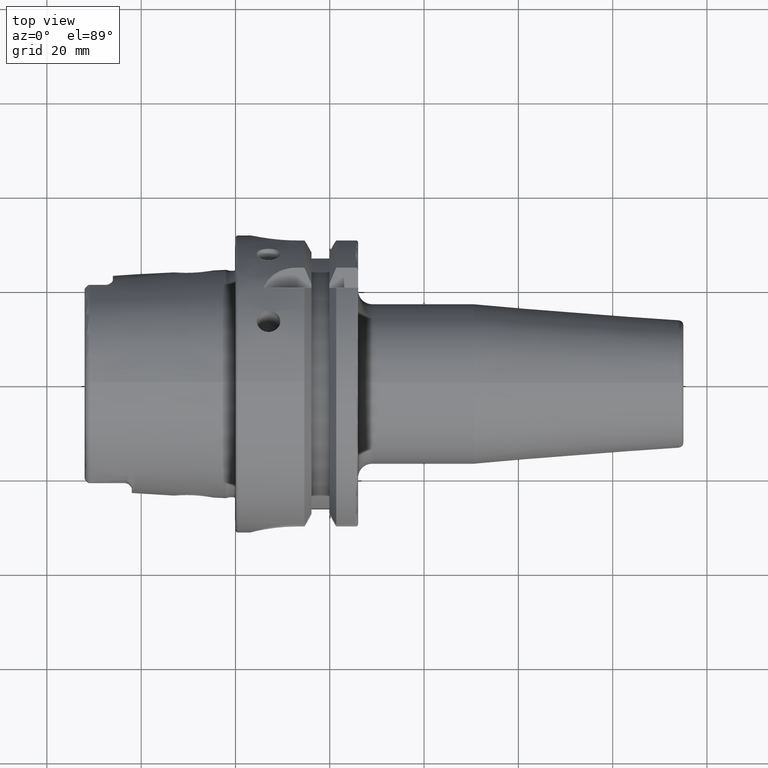
[diagram: clean part render]
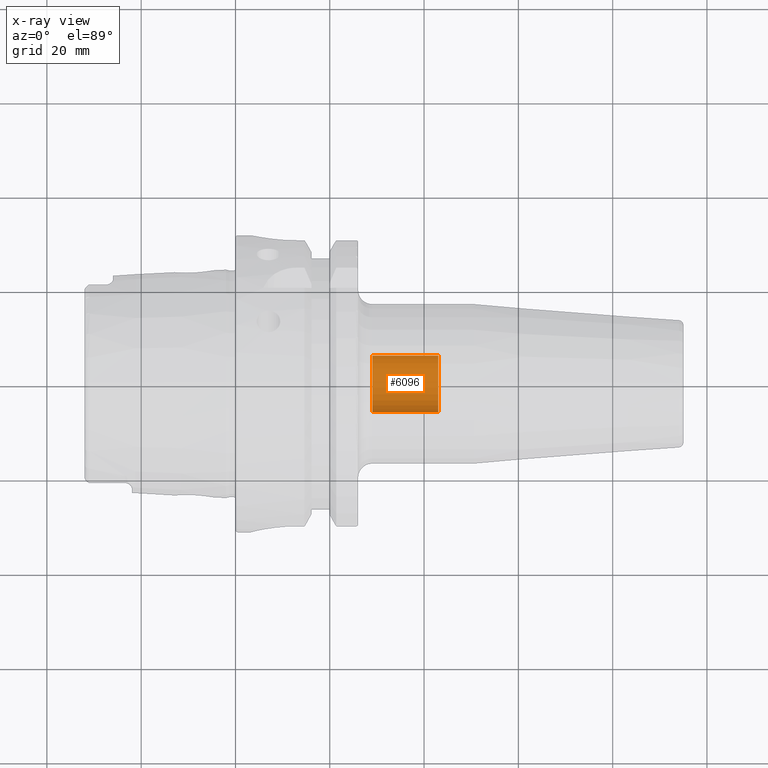
[diagram: x-ray — body ghosted, one internal face saturated and labeled with its STEP entity id]
A machine part, top view, then the same camera in x-ray: the body is ghosted and one INTERNAL B-rep face — a face not visible from any outside direction — is saturated and labeled: STEP entity #6096.
In plain terms, the highlighted cylindrical surface (edge-blend (fillet) strip) has radius 6 mm, axis along (1, 0, 0).
Its self-contained STEP definition (entity closure, byte-faithful):
#6031=CARTESIAN_POINT('',(4.3E1,0.E0,0.E0));
#6032=DIRECTION('',(-1.E0,0.E0,0.E0));
#6033=DIRECTION('',(0.E0,1.E0,0.E0));
#6034=AXIS2_PLACEMENT_3D('',#6031,#6032,#6033);
#6041=DIRECTION('',(-1.E0,0.E0,0.E0));
#6042=VECTOR('',#6041,1.4E1);
#6043=CARTESIAN_POINT('',(4.3E1,6.E0,0.E0));
#6044=LINE('',#6043,#6042);
#6045=DIRECTION('',(-1.E0,0.E0,0.E0));
#6046=VECTOR('',#6045,1.4E1);
#6047=CARTESIAN_POINT('',(4.3E1,-6.E0,0.E0));
#6048=LINE('',#6047,#6046);
#6054=CARTESIAN_POINT('',(2.9E1,0.E0,0.E0));
#6055=DIRECTION('',(1.E0,0.E0,0.E0));
#6056=DIRECTION('',(0.E0,-1.E0,0.E0));
#6057=AXIS2_PLACEMENT_3D('',#6054,#6055,#6056);
#6069=CARTESIAN_POINT('',(2.9E1,-6.E0,0.E0));
#6070=CARTESIAN_POINT('',(2.9E1,6.E0,0.E0));
#6071=VERTEX_POINT('',#6069);
#6072=VERTEX_POINT('',#6070);
#6073=CARTESIAN_POINT('',(4.3E1,-6.E0,0.E0));
#6074=CARTESIAN_POINT('',(4.3E1,6.E0,0.E0));
#6075=VERTEX_POINT('',#6073);
#6076=VERTEX_POINT('',#6074);
#6081=CARTESIAN_POINT('',(2.168002992512E1,0.E0,0.E0));
#6082=DIRECTION('',(1.E0,0.E0,0.E0));
#6083=DIRECTION('',(0.E0,-1.E0,0.E0));
#6084=AXIS2_PLACEMENT_3D('',#6081,#6082,#6083);
#6085=CYLINDRICAL_SURFACE('',#6084,6.E0);
#6087=ORIENTED_EDGE('',*,*,#6086,.T.);
#6089=ORIENTED_EDGE('',*,*,#6088,.T.);
#6091=ORIENTED_EDGE('',*,*,#6090,.T.);
#6093=ORIENTED_EDGE('',*,*,#6092,.F.);
#6094=EDGE_LOOP('',(#6087,#6089,#6091,#6093));
#6095=FACE_OUTER_BOUND('',#6094,.F.);
#6096=ADVANCED_FACE('',(#6095),#6085,.F.);
#6035=CIRCLE('',#6034,6.E0);
#6058=CIRCLE('',#6057,6.E0);
#6086=EDGE_CURVE('',#6076,#6075,#6035,.T.);
#6088=EDGE_CURVE('',#6075,#6071,#6048,.T.);
#6090=EDGE_CURVE('',#6071,#6072,#6058,.T.);
#6092=EDGE_CURVE('',#6076,#6072,#6044,.T.);